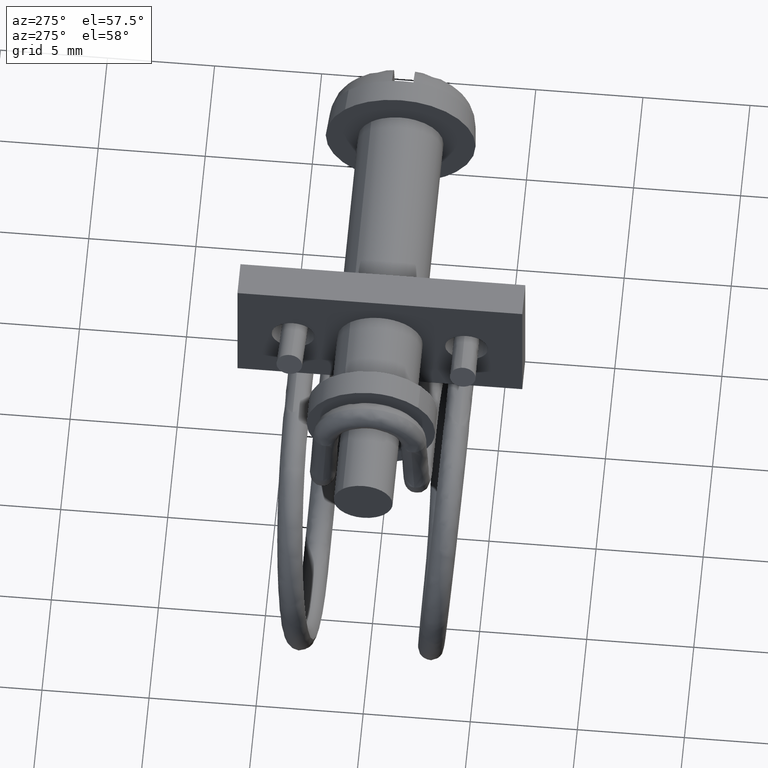
[diagram: clean part render]
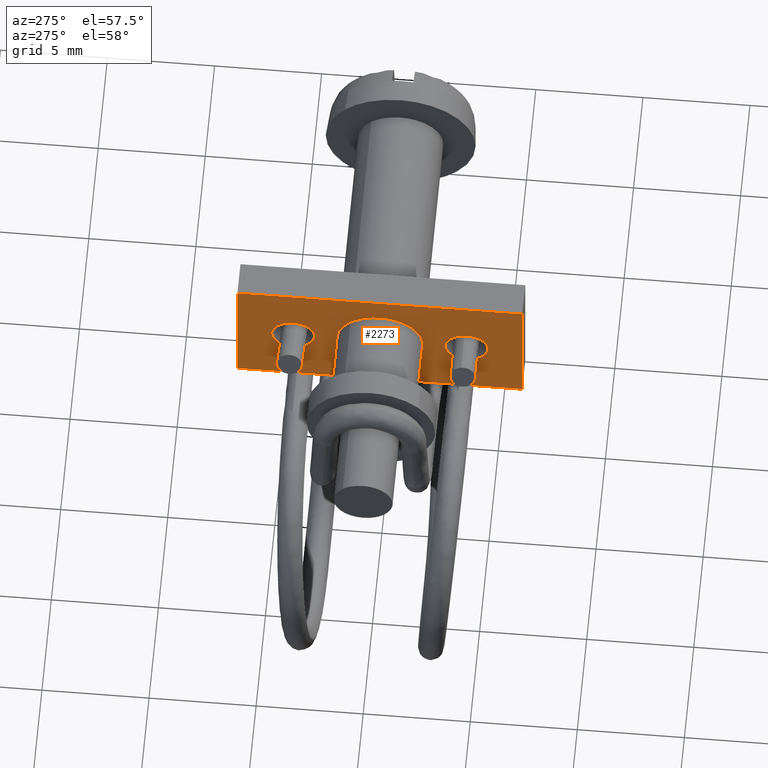
[diagram: same view with one face highlighted and labeled with its STEP entity id]
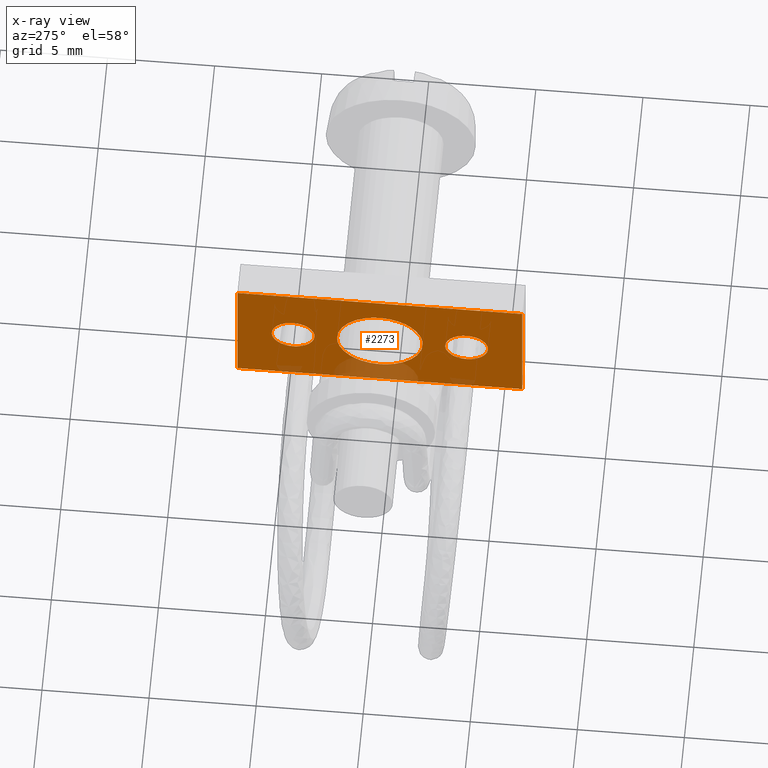
[diagram: x-ray of the same camera — body ghosted, the highlighted face saturated]
A machine part, auxiliary view. The second image highlights one B-rep face of the part: STEP entity #2273.
The next image is the same camera in x-ray: the body ghosted, the highlighted face saturated — about 9% of this face is hidden behind the body in this view.
In plain terms, the highlighted face is a freeform B-spline surface patch.
Its self-contained STEP definition (entity closure, byte-faithful):
#1600=CARTESIAN_POINT('',(-11.100000000000000,1.376709074501425,-1.450748699073610));
#1601=VERTEX_POINT('',#1600);
#1607=CARTESIAN_POINT('',(-11.100000000000000,0.0,-2.000000000000199));
#1608=VERTEX_POINT('',#1607);
#1609=CARTESIAN_POINT('',(-11.100000000000000,0.0,-2.000000000000199));
#1610=CARTESIAN_POINT('',(-11.099999999999961,0.205639382410385,-2.000112963859508));
#1611=CARTESIAN_POINT('',(-11.100000000000041,0.529811863452965,-1.949523729459654));
#1612=CARTESIAN_POINT('',(-11.099999999999939,0.998368041933632,-1.752842869778089));
#1613=CARTESIAN_POINT('',(-11.100000000000080,1.244807055926934,-1.576013993087083));
#1614=CARTESIAN_POINT('',(-11.100000000000000,1.376709074501425,-1.450748699073610));
#1615=B_SPLINE_CURVE_WITH_KNOTS('',3,(#1609,#1610,#1611,#1612,#1613,#1614),.UNSPECIFIED.,.F.,.U.,(4,1,1,4),(7.946564E-009,0.616871906763878,0.972751185127391,1.518445294094814),.UNSPECIFIED.);
#1616=EDGE_CURVE('',#1608,#1601,#1615,.T.);
#1618=CARTESIAN_POINT('',(-11.100000000000000,-1.999999999999972,-0.000000336783941));
#1619=VERTEX_POINT('',#1618);
#1620=CARTESIAN_POINT('',(-11.100000000000000,-1.999999999999972,-0.000000336783941));
#1621=CARTESIAN_POINT('',(-11.100000000000010,-2.000124648842586,-0.212732485311596));
#1622=CARTESIAN_POINT('',(-11.099999999999980,-1.953886693790762,-0.498997774331133));
#1623=CARTESIAN_POINT('',(-11.100000000000010,-1.810049718910390,-0.865061326701595));
#1624=CARTESIAN_POINT('',(-11.100000000000000,-1.662011779378400,-1.130206038494378));
#1625=CARTESIAN_POINT('',(-11.099999999999980,-1.470600605423476,-1.366362965891259));
#1626=CARTESIAN_POINT('',(-11.100000000000010,-1.235148008203217,-1.582414398785151));
#1627=CARTESIAN_POINT('',(-11.099999999999991,-0.963028848828348,-1.766671292682256));
#1628=CARTESIAN_POINT('',(-11.100000000000030,-0.539906150651707,-1.948078772046985));
#1629=CARTESIAN_POINT('',(-11.099999999999939,-0.204543041479509,-2.000099627313582));
#1630=CARTESIAN_POINT('',(-11.100000000000000,0.0,-2.000000000000199));
#1631=B_SPLINE_CURVE_WITH_KNOTS('',3,(#1620,#1621,#1622,#1623,#1624,#1625,#1626,#1627,#1628,#1629,#1630),.UNSPECIFIED.,.F.,.U.,(4,1,1,1,1,1,1,1,4),(0.000000032458224,0.638139644845912,0.859035912454964,1.178107026100983,1.546271745031748,1.767155784760902,2.135313981160367,2.528019066484509,3.141612175933704),.UNSPECIFIED.);
#1632=EDGE_CURVE('',#1619,#1608,#1631,.T.);
#1634=CARTESIAN_POINT('',(-11.100000000000000,-1.376709074501432,1.450748699073218));
#1635=VERTEX_POINT('',#1634);
#1636=CARTESIAN_POINT('',(-11.100000000000000,-1.376709074501432,1.450748699073218));
#1637=CARTESIAN_POINT('',(-11.100000000000010,-1.523959254773044,1.311145847886524));
#1638=CARTESIAN_POINT('',(-11.099999999999991,-1.733390318683152,1.040686609792464));
#1639=CARTESIAN_POINT('',(-11.100000000000010,-1.948079781548132,0.540999866815604));
#1640=CARTESIAN_POINT('',(-11.099999999999980,-2.000096722479066,0.202905782223319));
#1641=CARTESIAN_POINT('',(-11.100000000000000,-1.999999999999972,-0.000000336783941));
#1642=B_SPLINE_CURVE_WITH_KNOTS('',3,(#1636,#1637,#1638,#1639,#1640,#1641),.UNSPECIFIED.,.F.,.U.,(4,1,1,4),(9.544038E-009,0.608688005844913,1.014479411779057,1.623167408084527),.UNSPECIFIED.);
#1643=EDGE_CURVE('',#1635,#1619,#1642,.T.);
#1684=CARTESIAN_POINT('',(-11.100000000000000,0.0,1.999999999999801));
#1685=VERTEX_POINT('',#1684);
#1686=CARTESIAN_POINT('',(-11.100000000000000,0.0,1.999999999999801));
#1687=CARTESIAN_POINT('',(-11.100000000000019,-0.205641044882760,2.000105166799172));
#1688=CARTESIAN_POINT('',(-11.100000000000000,-0.506083129921913,1.953221231755722));
#1689=CARTESIAN_POINT('',(-11.099999999999980,-0.977410473549627,1.765192553353682));
#1690=CARTESIAN_POINT('',(-11.100000000000041,-1.227617665462075,1.592377864985993));
#1691=CARTESIAN_POINT('',(-11.100000000000000,-1.376709074501432,1.450748699073218));
#1692=B_SPLINE_CURVE_WITH_KNOTS('',3,(#1686,#1687,#1688,#1689,#1690,#1691),.UNSPECIFIED.,.F.,.U.,(4,1,1,4),(7.946685E-009,0.616871906763936,0.901573395283692,1.518445294094816),.UNSPECIFIED.);
#1693=EDGE_CURVE('',#1685,#1635,#1692,.T.);
#1695=CARTESIAN_POINT('',(-11.100000000000000,1.999999999999972,0.000000336783581));
#1696=VERTEX_POINT('',#1695);
#1697=CARTESIAN_POINT('',(-11.100000000000000,1.999999999999972,0.000000336783581));
#1698=CARTESIAN_POINT('',(-11.100000000000010,2.000086958552897,0.196362129681666));
#1699=CARTESIAN_POINT('',(-11.100000000000019,1.961137052518525,0.458108619343429));
#1700=CARTESIAN_POINT('',(-11.099999999999969,1.828657743615961,0.828298804021086));
#1701=CARTESIAN_POINT('',(-11.100000000000071,1.662051672691706,1.140063592350344));
#1702=CARTESIAN_POINT('',(-11.100000000000010,1.400303736517781,1.447290565637947));
#1703=CARTESIAN_POINT('',(-11.099999999999939,1.115448053011684,1.669547422986799));
#1704=CARTESIAN_POINT('',(-11.100000000000190,0.800449520546324,1.845495012336062));
#1705=CARTESIAN_POINT('',(-11.099999999999540,0.433600871208880,1.969162827486165));
#1706=CARTESIAN_POINT('',(-11.100000000000470,0.139079675363158,2.000019952933568));
#1707=CARTESIAN_POINT('',(-11.100000000000000,0.0,1.999999999999801));
#1708=B_SPLINE_CURVE_WITH_KNOTS('',3,(#1697,#1698,#1699,#1700,#1701,#1702,#1703,#1704,#1705,#1706,#1707),.UNSPECIFIED.,.F.,.U.,(4,1,1,1,1,1,1,1,4),(0.000000032457315,0.589048929577105,0.785403171026108,1.178107026100401,1.644428534286931,1.988045079704611,2.258032005585257,2.724373199422151,3.141612175933691),.UNSPECIFIED.);
#1709=EDGE_CURVE('',#1696,#1685,#1708,.T.);
#1711=CARTESIAN_POINT('',(-11.100000000000000,1.376709074501425,-1.450748699073610));
#1712=CARTESIAN_POINT('',(-11.099999999999991,1.480977279535864,-1.351837184043497));
#1713=CARTESIAN_POINT('',(-11.100000000000041,1.662522058037247,-1.137882506709645));
#1714=CARTESIAN_POINT('',(-11.099999999999961,1.860178643940914,-0.771402816008256));
#1715=CARTESIAN_POINT('',(-11.100000000000071,1.974993813989529,-0.388879176460517));
#1716=CARTESIAN_POINT('',(-11.099999999999950,2.000013752351694,-0.126809235670428));
#1717=CARTESIAN_POINT('',(-11.100000000000000,1.999999999999972,0.000000336783581));
#1718=B_SPLINE_CURVE_WITH_KNOTS('',3,(#1711,#1712,#1713,#1714,#1715,#1716,#1717),.UNSPECIFIED.,.F.,.U.,(4,1,1,1,4),(9.544197E-009,0.431154120316746,0.836940628895850,1.242737819586943,1.623167408084560),.UNSPECIFIED.);
#1719=EDGE_CURVE('',#1601,#1696,#1718,.T.);
#1808=CARTESIAN_POINT('',(-11.100000000000000,-3.361645533026764,-0.725374309490860));
#1809=VERTEX_POINT('',#1808);
#1815=CARTESIAN_POINT('',(-11.100000000000000,-4.050000000000000,-1.000000000000199));
#1816=VERTEX_POINT('',#1815);
#1817=CARTESIAN_POINT('',(-11.100000000000000,-4.050000000000000,-1.000000000000199));
#1818=CARTESIAN_POINT('',(-11.099999999999991,-3.947186207075922,-1.000042013668993));
#1819=CARTESIAN_POINT('',(-11.100000000000041,-3.765313940130119,-0.971705659196130));
#1820=CARTESIAN_POINT('',(-11.099999999999969,-3.533355343024488,-0.866118771385547));
#1821=CARTESIAN_POINT('',(-11.100000000000019,-3.413269211946746,-0.774376040569795));
#1822=CARTESIAN_POINT('',(-11.100000000000000,-3.361645533026764,-0.725374309490860));
#1823=B_SPLINE_CURVE_WITH_KNOTS('',3,(#1817,#1818,#1819,#1820,#1821,#1822),.UNSPECIFIED.,.F.,.U.,(4,1,1,4),(5.035035E-009,0.308439757821202,0.545700827497761,0.759235945717775),.UNSPECIFIED.);
#1824=EDGE_CURVE('',#1816,#1809,#1823,.T.);
#1826=CARTESIAN_POINT('',(-11.100000000000000,-5.049999999999886,-0.000000478513849));
#1827=VERTEX_POINT('',#1826);
#1828=CARTESIAN_POINT('',(-11.100000000000000,-5.049999999999886,-0.000000478513849));
#1829=CARTESIAN_POINT('',(-11.100000000000019,-5.050032624694900,-0.094086979972585));
#1830=CARTESIAN_POINT('',(-11.099999999999950,-5.026154524446186,-0.261784546850564));
#1831=CARTESIAN_POINT('',(-11.100000000000030,-4.937940297788704,-0.474710082355943));
#1832=CARTESIAN_POINT('',(-11.100000000000060,-4.802085942444950,-0.675434948554858));
#1833=CARTESIAN_POINT('',(-11.099999999999820,-4.603470021888253,-0.851086949329346));
#1834=CARTESIAN_POINT('',(-11.100000000000200,-4.332237802012348,-0.973249375155298));
#1835=CARTESIAN_POINT('',(-11.099999999999810,-4.144086454677790,-1.000032269198756));
#1836=CARTESIAN_POINT('',(-11.100000000000000,-4.050000000000000,-1.000000000000199));
#1837=B_SPLINE_CURVE_WITH_KNOTS('',3,(#1828,#1829,#1830,#1831,#1832,#1833,#1834,#1835,#1836),.UNSPECIFIED.,.F.,.U.,(4,1,1,1,1,1,4),(0.000000042544070,0.282252836880663,0.503150183640747,0.687234072183017,1.006291885126101,1.288553118971646,1.570805913178871),.UNSPECIFIED.);
#1838=EDGE_CURVE('',#1827,#1816,#1837,.T.);
#1840=CARTESIAN_POINT('',(-11.100000000000000,-4.738354466973235,0.725374309490462));
#1841=VERTEX_POINT('',#1840);
#1842=CARTESIAN_POINT('',(-11.100000000000000,-4.738354466973235,0.725374309490462));
#1843=CARTESIAN_POINT('',(-11.099999999999980,-4.805837912683074,0.661385127240362));
#1844=CARTESIAN_POINT('',(-11.100000000000041,-4.906767124144301,0.534430196606054));
#1845=CARTESIAN_POINT('',(-11.099999999999969,-5.020427920824935,0.287394815810164));
#1846=CARTESIAN_POINT('',(-11.099999999999991,-5.050063567072256,0.109911055835845));
#1847=CARTESIAN_POINT('',(-11.100000000000000,-5.049999999999886,-0.000000478513849));
#1848=B_SPLINE_CURVE_WITH_KNOTS('',3,(#1842,#1843,#1844,#1845,#1846,#1847),.UNSPECIFIED.,.F.,.U.,(4,1,1,4),(0.000000011929200,0.278984308091534,0.481875228971051,0.811584006164817),.UNSPECIFIED.);
#1849=EDGE_CURVE('',#1841,#1827,#1848,.T.);
#1889=CARTESIAN_POINT('',(-11.100000000000000,-4.050000000000000,0.999999999999801));
#1890=VERTEX_POINT('',#1889);
#1891=CARTESIAN_POINT('',(-11.100000000000000,-4.050000000000000,0.999999999999801));
#1892=CARTESIAN_POINT('',(-11.100000000000019,-4.121176917183389,1.000011414889469));
#1893=CARTESIAN_POINT('',(-11.099999999999991,-4.255615054505424,0.985579835464959));
#1894=CARTESIAN_POINT('',(-11.100000000000000,-4.497853301972491,0.908442949298578));
#1895=CARTESIAN_POINT('',(-11.100000000000010,-4.652355832859251,0.807107444838609));
#1896=CARTESIAN_POINT('',(-11.100000000000000,-4.738354466973235,0.725374309490462));
#1897=B_SPLINE_CURVE_WITH_KNOTS('',3,(#1891,#1892,#1893,#1894,#1895,#1896),.UNSPECIFIED.,.F.,.U.,(4,1,1,4),(5.034910E-009,0.213535123256887,0.403343984130239,0.759235945717773),.UNSPECIFIED.);
#1898=EDGE_CURVE('',#1890,#1841,#1897,.T.);
#1900=CARTESIAN_POINT('',(-11.100000000000000,-3.050000000000114,0.000000478513449));
#1901=VERTEX_POINT('',#1900);
#1902=CARTESIAN_POINT('',(-11.100000000000000,-3.050000000000114,0.000000478513449));
#1903=CARTESIAN_POINT('',(-11.100000000000049,-3.049879206920186,0.126829942300524));
#1904=CARTESIAN_POINT('',(-11.099999999999850,-3.089447849103553,0.331263852725855));
#1905=CARTESIAN_POINT('',(-11.100000000000239,-3.217123103413507,0.566565000154473));
#1906=CARTESIAN_POINT('',(-11.099999999999680,-3.342340184547955,0.713524946723399));
#1907=CARTESIAN_POINT('',(-11.100000000000220,-3.484360345221803,0.831553274056595));
#1908=CARTESIAN_POINT('',(-11.099999999999900,-3.628000515600107,0.911764816294939));
#1909=CARTESIAN_POINT('',(-11.100000000000041,-3.820944869453692,0.980802861203792));
#1910=CARTESIAN_POINT('',(-11.099999999999991,-3.955910736268959,1.000036219146531));
#1911=CARTESIAN_POINT('',(-11.100000000000000,-4.050000000000000,0.999999999999801));
#1912=B_SPLINE_CURVE_WITH_KNOTS('',3,(#1902,#1903,#1904,#1905,#1906,#1907,#1908,#1909,#1910,#1911),.UNSPECIFIED.,.F.,.U.,(4,1,1,1,1,1,1,4),(0.000000042542486,0.380429555759637,0.613602699324276,0.797661904256641,0.957203256085496,1.165832491102426,1.288553118971473,1.570805913178876),.UNSPECIFIED.);
#1913=EDGE_CURVE('',#1901,#1890,#1912,.T.);
#1915=CARTESIAN_POINT('',(-11.100000000000000,-3.361645533026764,-0.725374309490860));
#1916=CARTESIAN_POINT('',(-11.100000000000010,-3.281873273586330,-0.649764498795637));
#1917=CARTESIAN_POINT('',(-11.100000000000030,-3.168368743915571,-0.499252102235499));
#1918=CARTESIAN_POINT('',(-11.099999999999961,-3.070490036438057,-0.245152700015785));
#1919=CARTESIAN_POINT('',(-11.100000000000030,-3.049980117104498,-0.084541428176195));
#1920=CARTESIAN_POINT('',(-11.100000000000000,-3.050000000000114,0.000000478513449));
#1921=B_SPLINE_CURVE_WITH_KNOTS('',3,(#1915,#1916,#1917,#1918,#1919,#1920),.UNSPECIFIED.,.F.,.U.,(4,1,1,4),(0.000000011929415,0.329708789107430,0.557962348715729,0.811584006164814),.UNSPECIFIED.);
#1922=EDGE_CURVE('',#1809,#1901,#1921,.T.);
#2009=CARTESIAN_POINT('',(-11.100000000000000,4.738354466973330,-0.725374309490860));
#2010=VERTEX_POINT('',#2009);
#2016=CARTESIAN_POINT('',(-11.100000000000000,4.050000000000095,-1.000000000000199));
#2017=VERTEX_POINT('',#2016);
#2018=CARTESIAN_POINT('',(-11.100000000000000,4.050000000000095,-1.000000000000199));
#2019=CARTESIAN_POINT('',(-11.100000000000019,4.168646578730701,-1.000102201911683));
#2020=CARTESIAN_POINT('',(-11.099999999999969,4.334651659164098,-0.970087294194817));
#2021=CARTESIAN_POINT('',(-11.100000000000041,4.565581078406486,-0.864980777709275));
#2022=CARTESIAN_POINT('',(-11.100000000000010,4.675266672807556,-0.785277540515832));
#2023=CARTESIAN_POINT('',(-11.100000000000000,4.738354466973330,-0.725374309490860));
#2024=B_SPLINE_CURVE_WITH_KNOTS('',3,(#2018,#2019,#2020,#2021,#2022,#2023),.UNSPECIFIED.,.F.,.U.,(4,1,1,4),(5.034972E-009,0.355891966637419,0.498248513656772,0.759235945717777),.UNSPECIFIED.);
#2025=EDGE_CURVE('',#2017,#2010,#2024,.T.);
#2027=CARTESIAN_POINT('',(-11.100000000000000,3.050000000000209,-0.000000478513848));
#2028=VERTEX_POINT('',#2027);
#2029=CARTESIAN_POINT('',(-11.100000000000000,3.050000000000209,-0.000000478513848));
#2030=CARTESIAN_POINT('',(-11.099999999999980,3.049920710428122,-0.118639610022931));
#2031=CARTESIAN_POINT('',(-11.100000000000041,3.083874038216327,-0.306748120605913));
#2032=CARTESIAN_POINT('',(-11.099999999999980,3.186222880122468,-0.513095933401916));
#2033=CARTESIAN_POINT('',(-11.100000000000060,3.289448849878903,-0.655922755722854));
#2034=CARTESIAN_POINT('',(-11.099999999999900,3.402797891202192,-0.769272268244151));
#2035=CARTESIAN_POINT('',(-11.100000000000060,3.554427269328829,-0.874668861230385));
#2036=CARTESIAN_POINT('',(-11.099999999999961,3.763692960982105,-0.970559897921614));
#2037=CARTESIAN_POINT('',(-11.100000000000030,3.939545047911703,-1.000061857774999));
#2038=CARTESIAN_POINT('',(-11.100000000000000,4.050000000000095,-1.000000000000199));
#2039=B_SPLINE_CURVE_WITH_KNOTS('',3,(#2029,#2030,#2031,#2032,#2033,#2034,#2035,#2036,#2037,#2038),.UNSPECIFIED.,.F.,.U.,(4,1,1,1,1,1,1,4),(0.000000042541614,0.355885555167989,0.564514070374818,0.687234072181813,0.883571883008778,1.043111291898295,1.239464520928133,1.570805913178879),.UNSPECIFIED.);
#2040=EDGE_CURVE('',#2028,#2017,#2039,.T.);
#2042=CARTESIAN_POINT('',(-11.100000000000000,3.361645533026859,0.725374309490462));
#2043=VERTEX_POINT('',#2042);
#2044=CARTESIAN_POINT('',(-11.100000000000000,3.361645533026859,0.725374309490462));
#2045=CARTESIAN_POINT('',(-11.099999999999991,3.281866037133708,0.649765308668869));
#2046=CARTESIAN_POINT('',(-11.100000000000010,3.183868736136995,0.519772890524589));
#2047=CARTESIAN_POINT('',(-11.100000000000030,3.076752360282375,0.270487341510110));
#2048=CARTESIAN_POINT('',(-11.099999999999969,3.049933714106628,0.109912312148507));
#2049=CARTESIAN_POINT('',(-11.100000000000000,3.050000000000209,-0.000000478513848));
#2050=B_SPLINE_CURVE_WITH_KNOTS('',3,(#2044,#2045,#2046,#2047,#2048,#2049),.UNSPECIFIED.,.F.,.U.,(4,1,1,4),(0.000000011929375,0.329708789107412,0.481875228971148,0.811584006164815),.UNSPECIFIED.);
#2051=EDGE_CURVE('',#2043,#2028,#2050,.T.);
#2091=CARTESIAN_POINT('',(-11.100000000000000,4.050000000000095,0.999999999999801));
#2092=VERTEX_POINT('',#2091);
#2093=CARTESIAN_POINT('',(-11.100000000000000,4.050000000000095,0.999999999999801));
#2094=CARTESIAN_POINT('',(-11.100000000000010,3.931353540353039,1.000101737933260));
#2095=CARTESIAN_POINT('',(-11.100000000000000,3.765348313656601,0.970087446676299));
#2096=CARTESIAN_POINT('',(-11.100000000000030,3.534419033599353,0.864980706797660));
#2097=CARTESIAN_POINT('',(-11.099999999999961,3.424733330505587,0.785277589567314));
#2098=CARTESIAN_POINT('',(-11.100000000000000,3.361645533026859,0.725374309490462));
#2099=B_SPLINE_CURVE_WITH_KNOTS('',3,(#2093,#2094,#2095,#2096,#2097,#2098),.UNSPECIFIED.,.F.,.U.,(4,1,1,4),(5.035007E-009,0.355891966637461,0.498248513656799,0.759235945717775),.UNSPECIFIED.);
#2100=EDGE_CURVE('',#2092,#2043,#2099,.T.);
#2102=CARTESIAN_POINT('',(-11.100000000000000,5.049999999999980,0.000000478513450));
#2103=VERTEX_POINT('',#2102);
#2104=CARTESIAN_POINT('',(-11.100000000000000,5.049999999999980,0.000000478513450));
#2105=CARTESIAN_POINT('',(-11.099999999999969,5.050013878512717,0.073630866546772));
#2106=CARTESIAN_POINT('',(-11.100000000000049,5.034115208334652,0.216796556605069));
#2107=CARTESIAN_POINT('',(-11.099999999999991,4.968417319477169,0.411667760098275));
#2108=CARTESIAN_POINT('',(-11.100000000000000,4.876303307241622,0.571950029018156));
#2109=CARTESIAN_POINT('',(-11.100000000000010,4.753040747637228,0.720293942546929));
#2110=CARTESIAN_POINT('',(-11.099999999999961,4.596264933232988,0.847355810171844));
#2111=CARTESIAN_POINT('',(-11.100000000000060,4.356737854021427,0.966097767008471));
#2112=CARTESIAN_POINT('',(-11.099999999999939,4.168644533496150,1.000100931951914));
#2113=CARTESIAN_POINT('',(-11.100000000000000,4.050000000000095,0.999999999999801));
#2114=B_SPLINE_CURVE_WITH_KNOTS('',3,(#2104,#2105,#2106,#2107,#2108,#2109,#2110,#2111,#2112,#2113),.UNSPECIFIED.,.F.,.U.,(4,1,1,1,1,1,1,4),(0.000000042542586,0.220888950011523,0.429517465279384,0.613602699324263,0.773144051440316,1.006291885125608,1.214920400626957,1.570805913178879),.UNSPECIFIED.);
#2115=EDGE_CURVE('',#2103,#2092,#2114,.T.);
#2117=CARTESIAN_POINT('',(-11.100000000000000,4.738354466973330,-0.725374309490860));
#2118=CARTESIAN_POINT('',(-11.099999999999969,4.796625734086797,-0.670103859152475));
#2119=CARTESIAN_POINT('',(-11.100000000000030,4.899725569316296,-0.545416511741978));
#2120=CARTESIAN_POINT('',(-11.099999999999969,5.018321189796828,-0.300082994384399));
#2121=CARTESIAN_POINT('',(-11.100000000000010,5.050065941448003,-0.109908319576602));
#2122=CARTESIAN_POINT('',(-11.100000000000000,5.049999999999980,0.000000478513450));
#2123=B_SPLINE_CURVE_WITH_KNOTS('',3,(#2117,#2118,#2119,#2120,#2121,#2122),.UNSPECIFIED.,.F.,.U.,(4,1,1,4),(0.000000011929056,0.240939531836413,0.481875228971039,0.811584006164816),.UNSPECIFIED.);
#2124=EDGE_CURVE('',#2010,#2103,#2123,.T.);
#2214=CARTESIAN_POINT('',(-11.100000000000000,-7.314334974222019,3.574674987401539));
#2215=CARTESIAN_POINT('',(-11.100000000000000,7.314335330955819,3.574674987401539));
#2216=CARTESIAN_POINT('',(-11.100000000000000,-7.314334974222019,-3.574675161745525));
#2217=CARTESIAN_POINT('',(-11.100000000000000,7.314335330955819,-3.574675161745525));
#2218=B_SPLINE_SURFACE_WITH_KNOTS('',1,1,((#2214,#2216),(#2215,#2217)),.UNSPECIFIED.,.F.,.F.,.U.,(2,2),(2,2),(0.0,14.628670305177840),(0.0,7.149350149147064),.UNSPECIFIED.);
#2219=CARTESIAN_POINT('',(-11.100000000000000,6.650000000000000,-3.250000000000200));
#2220=VERTEX_POINT('',#2219);
#2221=CARTESIAN_POINT('',(-11.100000000000000,6.650000000000000,3.249999999999800));
#2222=VERTEX_POINT('',#2221);
#2223=CARTESIAN_POINT('',(-11.100000000000000,6.650000000000000,-3.250000000000200));
#2224=CARTESIAN_POINT('',(-11.100000000000000,6.650000000000000,3.249999999999800));
#2225=QUASI_UNIFORM_CURVE('',1,(#2223,#2224),.UNSPECIFIED.,.F.,.U.);
#2226=EDGE_CURVE('',#2220,#2222,#2225,.T.);
#2227=ORIENTED_EDGE('',*,*,#2226,.F.);
#2228=CARTESIAN_POINT('',(-11.100000000000000,-6.650000000000000,-3.250000000000200));
#2229=VERTEX_POINT('',#2228);
#2230=CARTESIAN_POINT('',(-11.100000000000000,-6.650000000000000,-3.250000000000200));
#2231=CARTESIAN_POINT('',(-11.100000000000000,6.650000000000000,-3.250000000000200));
#2232=QUASI_UNIFORM_CURVE('',1,(#2230,#2231),.UNSPECIFIED.,.F.,.U.);
#2233=EDGE_CURVE('',#2229,#2220,#2232,.T.);
#2234=ORIENTED_EDGE('',*,*,#2233,.F.);
#2235=CARTESIAN_POINT('',(-11.100000000000000,-6.650000000000000,3.249999999999800));
#2236=VERTEX_POINT('',#2235);
#2237=CARTESIAN_POINT('',(-11.100000000000000,-6.650000000000000,3.249999999999800));
#2238=CARTESIAN_POINT('',(-11.100000000000000,-6.650000000000000,-3.250000000000200));
#2239=QUASI_UNIFORM_CURVE('',1,(#2237,#2238),.UNSPECIFIED.,.F.,.U.);
#2240=EDGE_CURVE('',#2236,#2229,#2239,.T.);
#2241=ORIENTED_EDGE('',*,*,#2240,.F.);
#2242=CARTESIAN_POINT('',(-11.100000000000000,6.650000000000000,3.249999999999800));
#2243=CARTESIAN_POINT('',(-11.100000000000000,-6.650000000000000,3.249999999999800));
#2244=QUASI_UNIFORM_CURVE('',1,(#2242,#2243),.UNSPECIFIED.,.F.,.U.);
#2245=EDGE_CURVE('',#2222,#2236,#2244,.T.);
#2246=ORIENTED_EDGE('',*,*,#2245,.F.);
#2247=EDGE_LOOP('',(#2227,#2234,#2241,#2246));
#2248=FACE_OUTER_BOUND('',#2247,.T.);
#2249=ORIENTED_EDGE('',*,*,#2040,.T.);
#2250=ORIENTED_EDGE('',*,*,#2025,.T.);
#2251=ORIENTED_EDGE('',*,*,#2124,.T.);
#2252=ORIENTED_EDGE('',*,*,#2115,.T.);
#2253=ORIENTED_EDGE('',*,*,#2100,.T.);
#2254=ORIENTED_EDGE('',*,*,#2051,.T.);
#2255=EDGE_LOOP('',(#2249,#2250,#2251,#2252,#2253,#2254));
#2256=FACE_BOUND('',#2255,.T.);
#2257=ORIENTED_EDGE('',*,*,#1838,.T.);
#2258=ORIENTED_EDGE('',*,*,#1824,.T.);
#2259=ORIENTED_EDGE('',*,*,#1922,.T.);
#2260=ORIENTED_EDGE('',*,*,#1913,.T.);
#2261=ORIENTED_EDGE('',*,*,#1898,.T.);
#2262=ORIENTED_EDGE('',*,*,#1849,.T.);
#2263=EDGE_LOOP('',(#2257,#2258,#2259,#2260,#2261,#2262));
#2264=FACE_BOUND('',#2263,.T.);
#2265=ORIENTED_EDGE('',*,*,#1632,.T.);
#2266=ORIENTED_EDGE('',*,*,#1616,.T.);
#2267=ORIENTED_EDGE('',*,*,#1719,.T.);
#2268=ORIENTED_EDGE('',*,*,#1709,.T.);
#2269=ORIENTED_EDGE('',*,*,#1693,.T.);
#2270=ORIENTED_EDGE('',*,*,#1643,.T.);
#2271=EDGE_LOOP('',(#2265,#2266,#2267,#2268,#2269,#2270));
#2272=FACE_BOUND('',#2271,.T.);
#2273=ADVANCED_FACE('',(#2248,#2256,#2264,#2272),#2218,.T.);